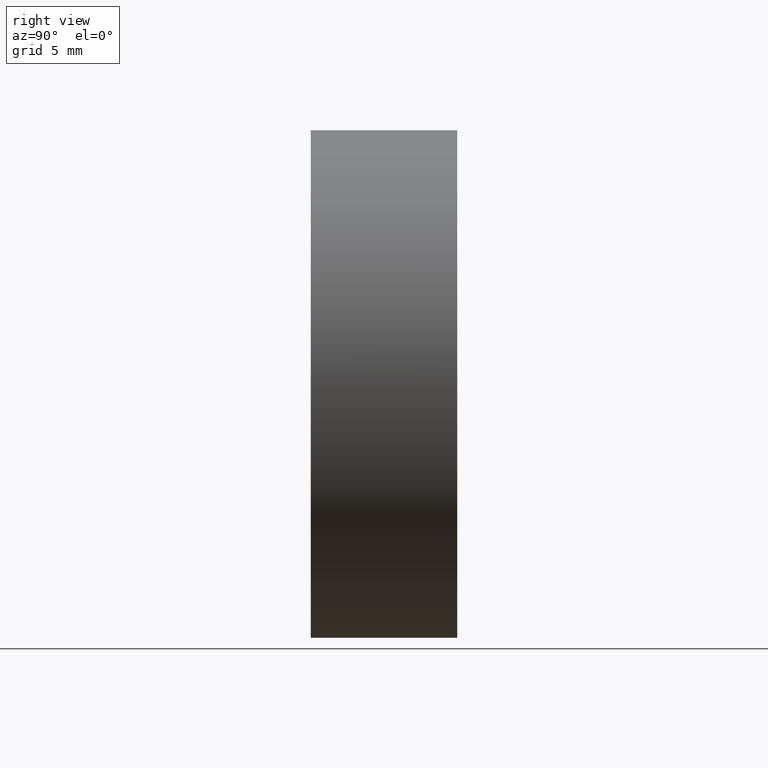
[diagram: clean part render]
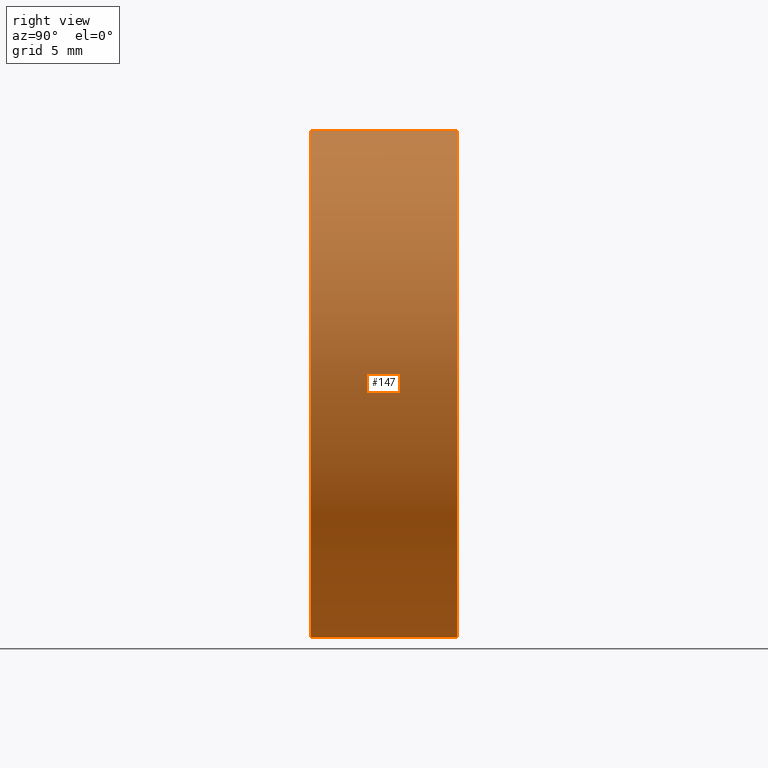
[diagram: same view with one face highlighted and labeled with its STEP entity id]
A machine part, right view. The second image highlights one B-rep face of the part: STEP entity #147.
In plain terms, the highlighted cylindrical surface (partial cylindrical patch) has radius 19.05 mm, axis along (-0, -1, -0).
Its self-contained STEP definition (entity closure, byte-faithful):
#11 = FACE_OUTER_BOUND ( 'NONE', #159, .T. ) ;
#14 = VECTOR ( 'NONE', #216, 1000.000000000000000 ) ;
#20 = VERTEX_POINT ( 'NONE', #189 ) ;
#25 = CARTESIAN_POINT ( 'NONE',  ( 2.332952152375708000E-015, 0.0000000000000000000, 19.05000000000000100 ) ) ;
#37 = ORIENTED_EDGE ( 'NONE', *, *, #92, .F. ) ;
#39 = CARTESIAN_POINT ( 'NONE',  ( 0.0000000000000000000, 11.00000000000000000, -19.05000000000000100 ) ) ;
#41 = LINE ( 'NONE', #39, #14 ) ;
#54 = ORIENTED_EDGE ( 'NONE', *, *, #179, .T. ) ;
#56 = VECTOR ( 'NONE', #188, 1000.000000000000000 ) ;
#58 = ORIENTED_EDGE ( 'NONE', *, *, #200, .F. ) ;
#60 = AXIS2_PLACEMENT_3D ( 'NONE', #106, #175, #157 ) ;
#71 = CIRCLE ( 'NONE', #60, 19.05000000000000100 ) ;
#73 = CYLINDRICAL_SURFACE ( 'NONE', #173, 19.05000000000000100 ) ;
#78 = DIRECTION ( 'NONE',  ( 0.0000000000000000000, 0.0000000000000000000, -1.000000000000000000 ) ) ;
#79 = EDGE_CURVE ( 'NONE', #138, #20, #82, .T. ) ;
#82 = CIRCLE ( 'NONE', #93, 19.05000000000000100 ) ;
#83 = DIRECTION ( 'NONE',  ( -0.0000000000000000000, -1.000000000000000000, -0.0000000000000000000 ) ) ;
#92 = EDGE_CURVE ( 'NONE', #168, #221, #71, .T. ) ;
#93 = AXIS2_PLACEMENT_3D ( 'NONE', #134, #108, #132 ) ;
#105 = LINE ( 'NONE', #191, #56 ) ;
#106 = CARTESIAN_POINT ( 'NONE',  ( 0.0000000000000000000, 11.00000000000000000, 0.0000000000000000000 ) ) ;
#108 = DIRECTION ( 'NONE',  ( 0.0000000000000000000, 1.000000000000000000, 0.0000000000000000000 ) ) ;
#110 = ORIENTED_EDGE ( 'NONE', *, *, #79, .T. ) ;
#113 = CARTESIAN_POINT ( 'NONE',  ( 2.332952152375708000E-015, 11.00000000000000000, 19.05000000000000100 ) ) ;
#132 = DIRECTION ( 'NONE',  ( 0.0000000000000000000, 0.0000000000000000000, 1.000000000000000000 ) ) ;
#134 = CARTESIAN_POINT ( 'NONE',  ( 0.0000000000000000000, 0.0000000000000000000, 0.0000000000000000000 ) ) ;
#138 = VERTEX_POINT ( 'NONE', #25 ) ;
#147 = ADVANCED_FACE ( 'NONE', ( #11 ), #73, .T. ) ;
#157 = DIRECTION ( 'NONE',  ( 0.0000000000000000000, 0.0000000000000000000, 1.000000000000000000 ) ) ;
#159 = EDGE_LOOP ( 'NONE', ( #37, #54, #110, #58 ) ) ;
#160 = CARTESIAN_POINT ( 'NONE',  ( 0.0000000000000000000, 11.00000000000000000, -19.05000000000000100 ) ) ;
#168 = VERTEX_POINT ( 'NONE', #113 ) ;
#173 = AXIS2_PLACEMENT_3D ( 'NONE', #242, #83, #78 ) ;
#175 = DIRECTION ( 'NONE',  ( 0.0000000000000000000, 1.000000000000000000, 0.0000000000000000000 ) ) ;
#179 = EDGE_CURVE ( 'NONE', #168, #138, #105, .T. ) ;
#188 = DIRECTION ( 'NONE',  ( -0.0000000000000000000, -1.000000000000000000, -0.0000000000000000000 ) ) ;
#189 = CARTESIAN_POINT ( 'NONE',  ( 0.0000000000000000000, 0.0000000000000000000, -19.05000000000000100 ) ) ;
#191 = CARTESIAN_POINT ( 'NONE',  ( 2.332952152375708000E-015, 11.00000000000000000, 19.05000000000000100 ) ) ;
#200 = EDGE_CURVE ( 'NONE', #221, #20, #41, .T. ) ;
#216 = DIRECTION ( 'NONE',  ( -0.0000000000000000000, -1.000000000000000000, -0.0000000000000000000 ) ) ;
#221 = VERTEX_POINT ( 'NONE', #160 ) ;
#242 = CARTESIAN_POINT ( 'NONE',  ( 0.0000000000000000000, 11.00000000000000000, 0.0000000000000000000 ) ) ;